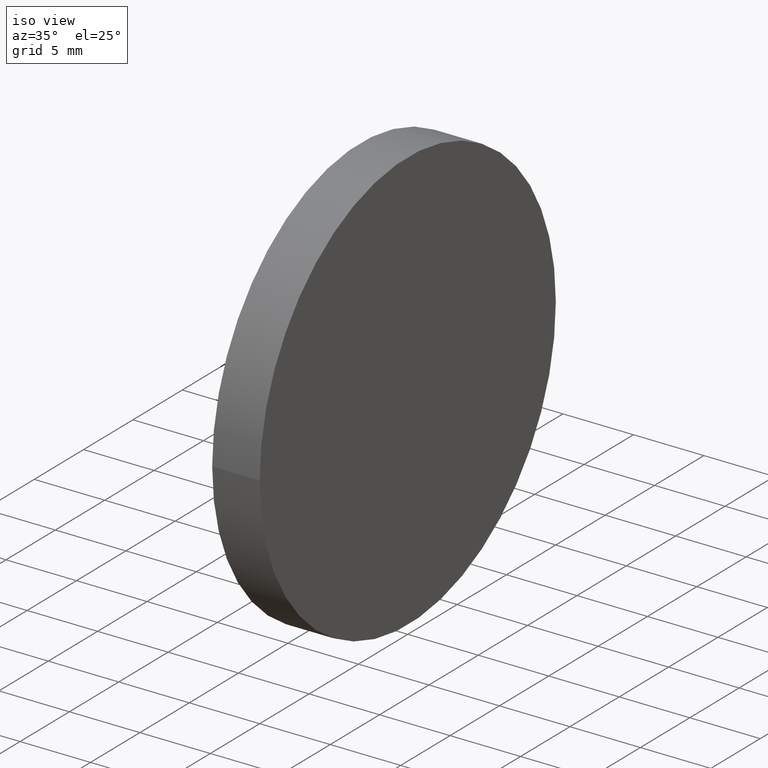
[diagram: clean part render]
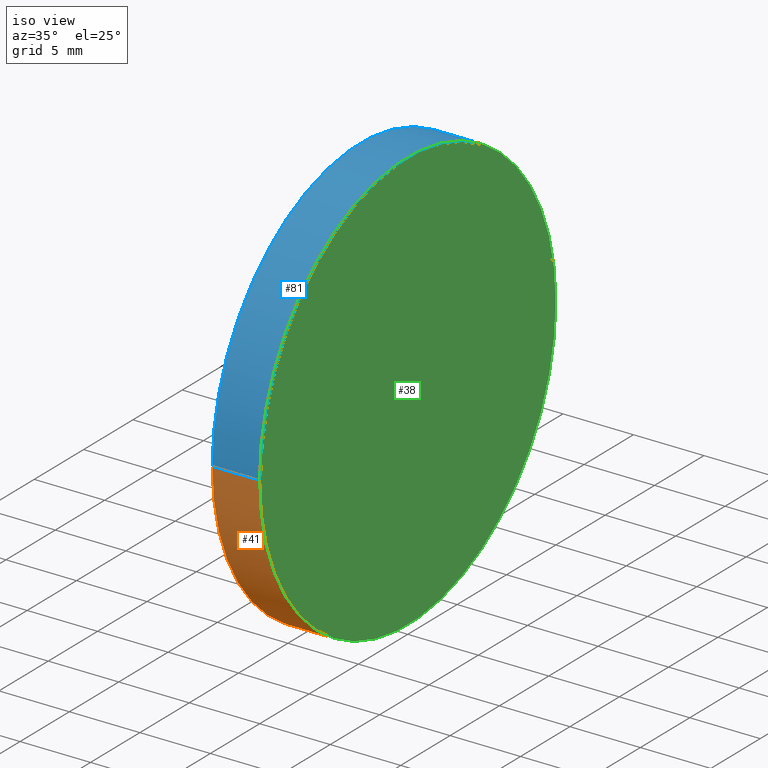
[diagram: same view with three faces highlighted in distinct colors, each labeled with its STEP entity id]
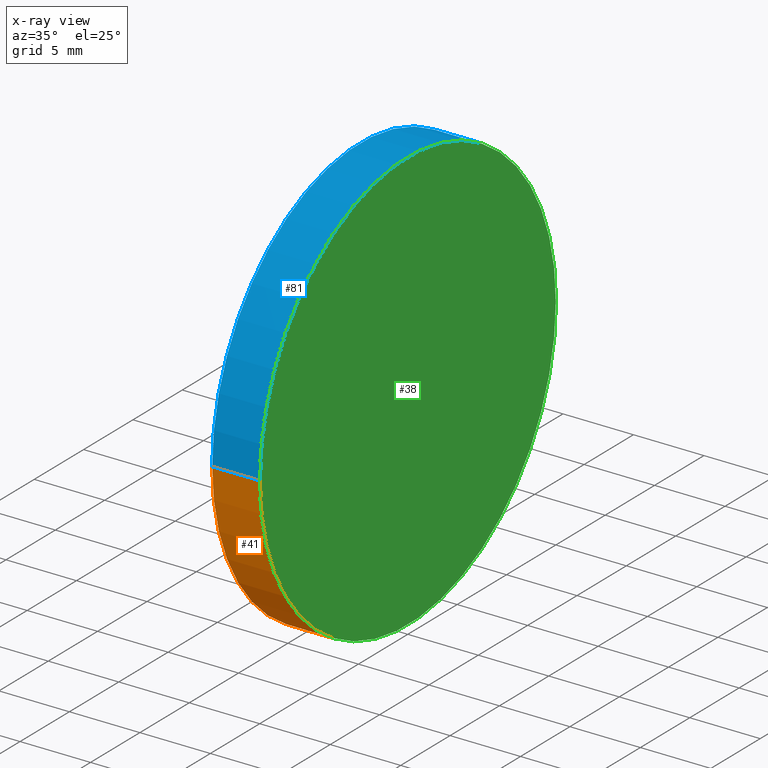
[diagram: x-ray of the same camera — body ghosted, the three highlighted faces saturated]
A machine part, iso view with three faces highlighted in distinct colors.
The next image is the same camera in x-ray (body ghosted, the three faces saturated) — at least one of them is partly hidden behind the body in this view.
Their STEP definitions:

[orange] entity #41 — the highlighted cylindrical surface (partial cylindrical patch) has radius 15 mm, axis along (1, 0, -0).
#4 = DIRECTION ( 'NONE',  ( 1.000000000000000000, 1.224646799147353454E-16, -0.000000000000000000 ) ) ;
#7 = LINE ( 'NONE', #197, #59 ) ;
#9 = VERTEX_POINT ( 'NONE', #15 ) ;
#15 = CARTESIAN_POINT ( 'NONE',  ( -3.370000000000006768, 14.99999999999998579, 0.000000000000000000 ) ) ;
#16 = LINE ( 'NONE', #152, #51 ) ;
#21 = CARTESIAN_POINT ( 'NONE',  ( -3.369999999999999218, -4.127059713126580291E-16, 0.000000000000000000 ) ) ;
#30 = FACE_OUTER_BOUND ( 'NONE', #86, .T. ) ;
#33 = CARTESIAN_POINT ( 'NONE',  ( 8.203927630400290314E-16, 1.004691371300624697E-31, 0.000000000000000000 ) ) ;
#36 = DIRECTION ( 'NONE',  ( 1.000000000000000000, 1.224646799147353454E-16, -0.000000000000000000 ) ) ;
#41 = ADVANCED_FACE ( 'NONE', ( #30 ), #137, .T. ) ;
#42 = AXIS2_PLACEMENT_3D ( 'NONE', #21, #96, #82 ) ;
#47 = CARTESIAN_POINT ( 'NONE',  ( 2.657362961761059113E-15, -15.00000000000000000, 1.836970198721029589E-15 ) ) ;
#51 = VECTOR ( 'NONE', #123, 1000.000000000000000 ) ;
#58 = AXIS2_PLACEMENT_3D ( 'NONE', #33, #4, #161 ) ;
#59 = VECTOR ( 'NONE', #36, 1000.000000000000000 ) ;
#68 = EDGE_CURVE ( 'NONE', #70, #90, #7, .T. ) ;
#70 = VERTEX_POINT ( 'NONE', #108 ) ;
#82 = DIRECTION ( 'NONE',  ( -1.156482317317871478E-16, 1.000000000000000000, 0.000000000000000000 ) ) ;
#86 = EDGE_LOOP ( 'NONE', ( #169, #144, #87, #103 ) ) ;
#87 = ORIENTED_EDGE ( 'NONE', *, *, #192, .T. ) ;
#89 = CARTESIAN_POINT ( 'NONE',  ( 0.000000000000000000, 0.000000000000000000, 0.000000000000000000 ) ) ;
#90 = VERTEX_POINT ( 'NONE', #47 ) ;
#96 = DIRECTION ( 'NONE',  ( 1.000000000000000000, 1.224646799147353454E-16, -0.000000000000000000 ) ) ;
#103 = ORIENTED_EDGE ( 'NONE', *, *, #116, .F. ) ;
#108 = CARTESIAN_POINT ( 'NONE',  ( -3.370000000000004992, -14.99999999999998579, 1.836970198721028011E-15 ) ) ;
#111 = CIRCLE ( 'NONE', #58, 15.00000000000000000 ) ;
#116 = EDGE_CURVE ( 'NONE', #90, #142, #111, .T. ) ;
#118 = DIRECTION ( 'NONE',  ( -1.224646799147353207E-16, 1.000000000000000000, 0.000000000000000000 ) ) ;
#123 = DIRECTION ( 'NONE',  ( 1.000000000000000000, 1.224646799147353454E-16, -0.000000000000000000 ) ) ;
#133 = CIRCLE ( 'NONE', #42, 15.00000000000000000 ) ;
#134 = AXIS2_PLACEMENT_3D ( 'NONE', #89, #146, #118 ) ;
#137 = CYLINDRICAL_SURFACE ( 'NONE', #134, 15.00000000000000000 ) ;
#142 = VERTEX_POINT ( 'NONE', #157 ) ;
#144 = ORIENTED_EDGE ( 'NONE', *, *, #170, .T. ) ;
#146 = DIRECTION ( 'NONE',  ( 1.000000000000000000, 1.224646799147353454E-16, -0.000000000000000000 ) ) ;
#152 = CARTESIAN_POINT ( 'NONE',  ( -1.836970198721029983E-15, 15.00000000000000000, 0.000000000000000000 ) ) ;
#157 = CARTESIAN_POINT ( 'NONE',  ( -1.016577435681000853E-15, 15.00000000000000000, 0.000000000000000000 ) ) ;
#161 = DIRECTION ( 'NONE',  ( -1.224646799147353207E-16, 1.000000000000000000, 0.000000000000000000 ) ) ;
#169 = ORIENTED_EDGE ( 'NONE', *, *, #68, .F. ) ;
#170 = EDGE_CURVE ( 'NONE', #70, #9, #133, .T. ) ;
#192 = EDGE_CURVE ( 'NONE', #9, #142, #16, .T. ) ;
#197 = CARTESIAN_POINT ( 'NONE',  ( 1.836970198721029983E-15, -15.00000000000000000, 1.836970198721029589E-15 ) ) ;

[blue] entity #81 — the highlighted cylindrical surface (partial cylindrical patch) has radius 15 mm, axis along (1, 0, -0).
#2 = AXIS2_PLACEMENT_3D ( 'NONE', #94, #125, #138 ) ;
#7 = LINE ( 'NONE', #197, #59 ) ;
#9 = VERTEX_POINT ( 'NONE', #15 ) ;
#15 = CARTESIAN_POINT ( 'NONE',  ( -3.370000000000006768, 14.99999999999998579, 0.000000000000000000 ) ) ;
#16 = LINE ( 'NONE', #152, #51 ) ;
#22 = AXIS2_PLACEMENT_3D ( 'NONE', #110, #114, #184 ) ;
#24 = ORIENTED_EDGE ( 'NONE', *, *, #68, .T. ) ;
#36 = DIRECTION ( 'NONE',  ( 1.000000000000000000, 1.224646799147353454E-16, -0.000000000000000000 ) ) ;
#47 = CARTESIAN_POINT ( 'NONE',  ( 2.657362961761059113E-15, -15.00000000000000000, 1.836970198721029589E-15 ) ) ;
#51 = VECTOR ( 'NONE', #123, 1000.000000000000000 ) ;
#54 = EDGE_CURVE ( 'NONE', #9, #70, #156, .T. ) ;
#55 = ORIENTED_EDGE ( 'NONE', *, *, #54, .T. ) ;
#59 = VECTOR ( 'NONE', #36, 1000.000000000000000 ) ;
#63 = FACE_OUTER_BOUND ( 'NONE', #148, .T. ) ;
#68 = EDGE_CURVE ( 'NONE', #70, #90, #7, .T. ) ;
#70 = VERTEX_POINT ( 'NONE', #108 ) ;
#78 = DIRECTION ( 'NONE',  ( -1.156482317317871478E-16, 1.000000000000000000, 0.000000000000000000 ) ) ;
#81 = ADVANCED_FACE ( 'NONE', ( #63 ), #193, .T. ) ;
#90 = VERTEX_POINT ( 'NONE', #47 ) ;
#94 = CARTESIAN_POINT ( 'NONE',  ( 0.000000000000000000, 0.000000000000000000, 0.000000000000000000 ) ) ;
#101 = ORIENTED_EDGE ( 'NONE', *, *, #192, .F. ) ;
#108 = CARTESIAN_POINT ( 'NONE',  ( -3.370000000000004992, -14.99999999999998579, 1.836970198721028011E-15 ) ) ;
#110 = CARTESIAN_POINT ( 'NONE',  ( 8.203927630400290314E-16, 1.004691371300624697E-31, 0.000000000000000000 ) ) ;
#112 = CARTESIAN_POINT ( 'NONE',  ( -3.369999999999999218, -4.127059713126580291E-16, 0.000000000000000000 ) ) ;
#114 = DIRECTION ( 'NONE',  ( 1.000000000000000000, 1.224646799147353454E-16, -0.000000000000000000 ) ) ;
#123 = DIRECTION ( 'NONE',  ( 1.000000000000000000, 1.224646799147353454E-16, -0.000000000000000000 ) ) ;
#125 = DIRECTION ( 'NONE',  ( 1.000000000000000000, 1.224646799147353454E-16, -0.000000000000000000 ) ) ;
#126 = DIRECTION ( 'NONE',  ( 1.000000000000000000, 1.224646799147353454E-16, -0.000000000000000000 ) ) ;
#129 = ORIENTED_EDGE ( 'NONE', *, *, #167, .F. ) ;
#138 = DIRECTION ( 'NONE',  ( -1.224646799147353207E-16, 1.000000000000000000, 0.000000000000000000 ) ) ;
#142 = VERTEX_POINT ( 'NONE', #157 ) ;
#148 = EDGE_LOOP ( 'NONE', ( #55, #24, #129, #101 ) ) ;
#152 = CARTESIAN_POINT ( 'NONE',  ( -1.836970198721029983E-15, 15.00000000000000000, 0.000000000000000000 ) ) ;
#156 = CIRCLE ( 'NONE', #168, 15.00000000000000000 ) ;
#157 = CARTESIAN_POINT ( 'NONE',  ( -1.016577435681000853E-15, 15.00000000000000000, 0.000000000000000000 ) ) ;
#167 = EDGE_CURVE ( 'NONE', #142, #90, #201, .T. ) ;
#168 = AXIS2_PLACEMENT_3D ( 'NONE', #112, #126, #78 ) ;
#184 = DIRECTION ( 'NONE',  ( -1.224646799147353207E-16, 1.000000000000000000, 0.000000000000000000 ) ) ;
#192 = EDGE_CURVE ( 'NONE', #9, #142, #16, .T. ) ;
#193 = CYLINDRICAL_SURFACE ( 'NONE', #2, 15.00000000000000000 ) ;
#197 = CARTESIAN_POINT ( 'NONE',  ( 1.836970198721029983E-15, -15.00000000000000000, 1.836970198721029589E-15 ) ) ;
#201 = CIRCLE ( 'NONE', #22, 15.00000000000000000 ) ;

[green] entity #38 — the highlighted planar face has unit normal (1, 0, -0).
#4 = DIRECTION ( 'NONE',  ( 1.000000000000000000, 1.224646799147353454E-16, -0.000000000000000000 ) ) ;
#22 = AXIS2_PLACEMENT_3D ( 'NONE', #110, #114, #184 ) ;
#33 = CARTESIAN_POINT ( 'NONE',  ( 8.203927630400290314E-16, 1.004691371300624697E-31, 0.000000000000000000 ) ) ;
#38 = ADVANCED_FACE ( 'NONE', ( #72 ), #172, .T. ) ;
#47 = CARTESIAN_POINT ( 'NONE',  ( 2.657362961761059113E-15, -15.00000000000000000, 1.836970198721029589E-15 ) ) ;
#57 = EDGE_LOOP ( 'NONE', ( #84, #166 ) ) ;
#58 = AXIS2_PLACEMENT_3D ( 'NONE', #33, #4, #161 ) ;
#60 = CARTESIAN_POINT ( 'NONE',  ( -1.426773817201015418E-15, 15.00000000000000000, 0.000000000000000000 ) ) ;
#72 = FACE_OUTER_BOUND ( 'NONE', #57, .T. ) ;
#84 = ORIENTED_EDGE ( 'NONE', *, *, #167, .T. ) ;
#90 = VERTEX_POINT ( 'NONE', #47 ) ;
#110 = CARTESIAN_POINT ( 'NONE',  ( 8.203927630400290314E-16, 1.004691371300624697E-31, 0.000000000000000000 ) ) ;
#111 = CIRCLE ( 'NONE', #58, 15.00000000000000000 ) ;
#114 = DIRECTION ( 'NONE',  ( 1.000000000000000000, 1.224646799147353454E-16, -0.000000000000000000 ) ) ;
#116 = EDGE_CURVE ( 'NONE', #90, #142, #111, .T. ) ;
#117 = DIRECTION ( 'NONE',  ( 1.000000000000000000, 1.224646799147353454E-16, -0.000000000000000000 ) ) ;
#142 = VERTEX_POINT ( 'NONE', #157 ) ;
#157 = CARTESIAN_POINT ( 'NONE',  ( -1.016577435681000853E-15, 15.00000000000000000, 0.000000000000000000 ) ) ;
#161 = DIRECTION ( 'NONE',  ( -1.224646799147353207E-16, 1.000000000000000000, 0.000000000000000000 ) ) ;
#166 = ORIENTED_EDGE ( 'NONE', *, *, #116, .T. ) ;
#167 = EDGE_CURVE ( 'NONE', #142, #90, #201, .T. ) ;
#171 = AXIS2_PLACEMENT_3D ( 'NONE', #60, #117, #174 ) ;
#172 = PLANE ( 'NONE',  #171 ) ;
#174 = DIRECTION ( 'NONE',  ( -1.224646799147353454E-16, 1.000000000000000000, 0.000000000000000000 ) ) ;
#184 = DIRECTION ( 'NONE',  ( -1.224646799147353207E-16, 1.000000000000000000, 0.000000000000000000 ) ) ;
#201 = CIRCLE ( 'NONE', #22, 15.00000000000000000 ) ;